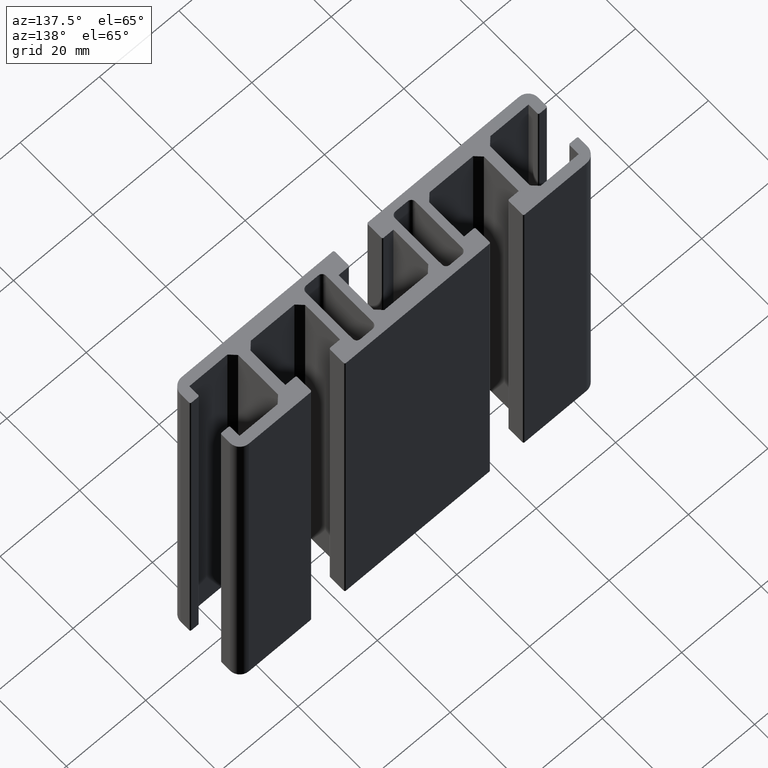
[diagram: clean part render]
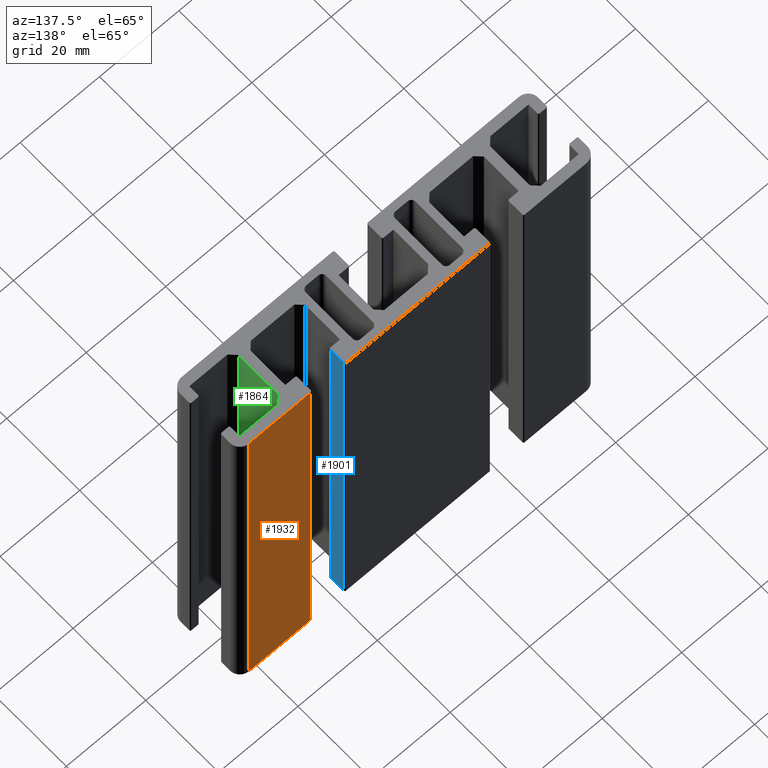
[diagram: same view with three faces highlighted in distinct colors, each labeled with its STEP entity id]
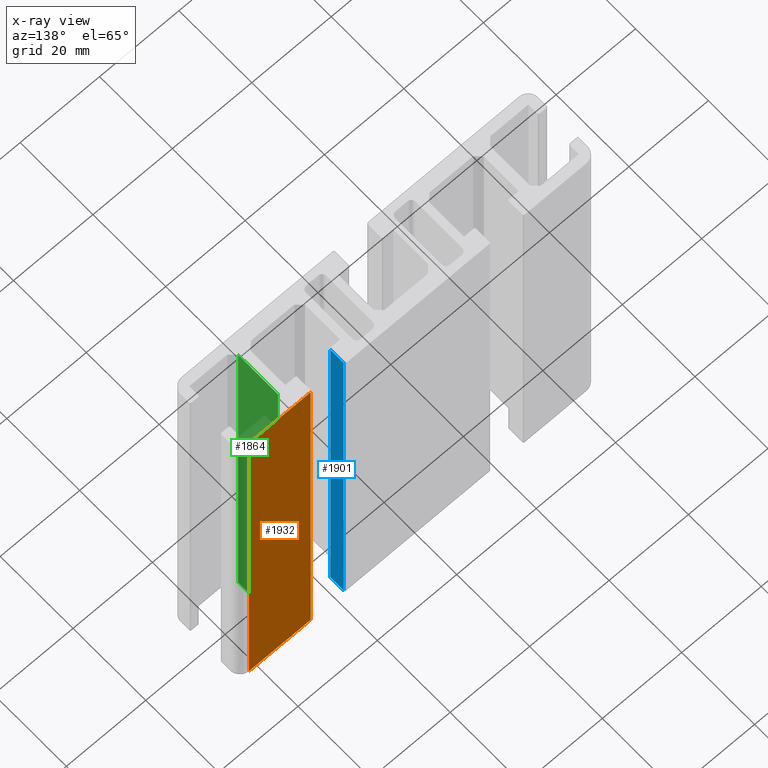
[diagram: x-ray of the same camera — body ghosted, the three highlighted faces saturated]
A machine part, auxiliary view with three faces highlighted in distinct colors.
The next image is the same camera in x-ray (body ghosted, the three faces saturated) — at least one of them is partly hidden behind the body in this view.
Their STEP definitions:

[orange] entity #1932 — the highlighted planar face has unit normal (0, 1, 0).
#78=PLANE('',#2086);
#170=FACE_OUTER_BOUND('',#266,.T.);
#266=EDGE_LOOP('',(#1597,#1598,#1599,#1600));
#411=LINE('',#2984,#629);
#488=LINE('',#3180,#706);
#489=LINE('',#3182,#707);
#490=LINE('',#3183,#708);
#629=VECTOR('',#2417,100.);
#706=VECTOR('',#2602,15.5462800000006);
#707=VECTOR('',#2603,100.);
#708=VECTOR('',#2604,15.5462800000006);
#895=VERTEX_POINT('',#2981);
#896=VERTEX_POINT('',#2983);
#961=VERTEX_POINT('',#3179);
#962=VERTEX_POINT('',#3181);
#1134=EDGE_CURVE('',#895,#896,#411,.T.);
#1232=EDGE_CURVE('',#895,#961,#488,.T.);
#1233=EDGE_CURVE('',#962,#961,#489,.T.);
#1234=EDGE_CURVE('',#896,#962,#490,.T.);
#1597=ORIENTED_EDGE('',*,*,#1134,.F.);
#1598=ORIENTED_EDGE('',*,*,#1232,.T.);
#1599=ORIENTED_EDGE('',*,*,#1233,.F.);
#1600=ORIENTED_EDGE('',*,*,#1234,.F.);
#1932=ADVANCED_FACE('',(#170),#78,.T.);
#2086=AXIS2_PLACEMENT_3D('',#3178,#2600,#2601);
#2417=DIRECTION('',(0.,0.,-1.));
#2600=DIRECTION('center_axis',(0.,1.,0.));
#2601=DIRECTION('ref_axis',(-1.,0.,0.));
#2602=DIRECTION('',(1.,0.,0.));
#2603=DIRECTION('',(0.,0.,1.));
#2604=DIRECTION('',(1.,0.,0.));
#2981=CARTESIAN_POINT('',(26.9537199999994,9.24999999999002,100.));
#2983=CARTESIAN_POINT('',(26.9537199999994,9.24999999999002,0.));
#2984=CARTESIAN_POINT('',(26.9537199999994,9.25,0.));
#3178=CARTESIAN_POINT('Origin',(42.5,9.25,0.));
#3179=CARTESIAN_POINT('',(42.5,9.25,100.));
#3180=CARTESIAN_POINT('',(21.25,9.25,100.));
#3181=CARTESIAN_POINT('',(42.5,9.25,0.));
#3182=CARTESIAN_POINT('',(42.5,9.25,0.));
#3183=CARTESIAN_POINT('',(21.25,9.25,0.));

[blue] entity #1901 — the highlighted planar face has unit normal (-1, -0, 0).
#56=PLANE('',#2037);
#139=FACE_OUTER_BOUND('',#235,.T.);
#235=EDGE_LOOP('',(#1473,#1474,#1475,#1476));
#412=LINE('',#2991,#630);
#414=LINE('',#2997,#632);
#415=LINE('',#2999,#633);
#416=LINE('',#3000,#634);
#630=VECTOR('',#2424,100.);
#632=VECTOR('',#2430,3.7);
#633=VECTOR('',#2431,100.);
#634=VECTOR('',#2432,3.7);
#897=VERTEX_POINT('',#2987);
#899=VERTEX_POINT('',#2990);
#901=VERTEX_POINT('',#2996);
#902=VERTEX_POINT('',#2998);
#1137=EDGE_CURVE('',#899,#897,#412,.T.);
#1140=EDGE_CURVE('',#901,#897,#414,.T.);
#1141=EDGE_CURVE('',#902,#901,#415,.T.);
#1142=EDGE_CURVE('',#899,#902,#416,.T.);
#1473=ORIENTED_EDGE('',*,*,#1140,.F.);
#1474=ORIENTED_EDGE('',*,*,#1141,.F.);
#1475=ORIENTED_EDGE('',*,*,#1142,.F.);
#1476=ORIENTED_EDGE('',*,*,#1137,.T.);
#1901=ADVANCED_FACE('',(#139),#56,.F.);
#2037=AXIS2_PLACEMENT_3D('',#2995,#2428,#2429);
#2424=DIRECTION('',(0.,0.,1.));
#2428=DIRECTION('center_axis',(-1.,-3.27665822402884E-13,0.));
#2429=DIRECTION('ref_axis',(0.,0.,1.));
#2430=DIRECTION('',(-3.27665822402884E-13,1.,0.));
#2431=DIRECTION('',(0.,0.,1.));
#2432=DIRECTION('',(3.27665822402884E-13,-1.,0.));
#2987=CARTESIAN_POINT('',(18.3537199999988,8.95,100.));
#2990=CARTESIAN_POINT('',(18.3537199999988,8.95,0.));
#2991=CARTESIAN_POINT('',(18.3537199999988,8.95,0.));
#2995=CARTESIAN_POINT('Origin',(18.35372,5.25,0.));
#2996=CARTESIAN_POINT('',(18.35372,5.25,100.));
#2997=CARTESIAN_POINT('',(18.3537200000009,2.62500000000301,100.));
#2998=CARTESIAN_POINT('',(18.35372,5.25,0.));
#2999=CARTESIAN_POINT('',(18.35372,5.25,0.));
#3000=CARTESIAN_POINT('',(18.3537200000009,2.62500000000301,0.));

[green] entity #1864 — the highlighted planar face has unit normal (-1, 0, 0).
#30=PLANE('',#1978);
#102=FACE_OUTER_BOUND('',#198,.T.);
#198=EDGE_LOOP('',(#1325,#1326,#1327,#1328));
#321=LINE('',#2763,#539);
#322=LINE('',#2766,#540);
#323=LINE('',#2768,#541);
#324=LINE('',#2769,#542);
#539=VECTOR('',#2217,100.);
#540=VECTOR('',#2220,10.971573);
#541=VECTOR('',#2221,10.971573);
#542=VECTOR('',#2222,100.);
#819=VERTEX_POINT('',#2759);
#820=VERTEX_POINT('',#2761);
#821=VERTEX_POINT('',#2765);
#822=VERTEX_POINT('',#2767);
#1025=EDGE_CURVE('',#820,#819,#321,.T.);
#1026=EDGE_CURVE('',#819,#821,#322,.T.);
#1027=EDGE_CURVE('',#822,#820,#323,.T.);
#1028=EDGE_CURVE('',#822,#821,#324,.T.);
#1325=ORIENTED_EDGE('',*,*,#1026,.F.);
#1326=ORIENTED_EDGE('',*,*,#1025,.F.);
#1327=ORIENTED_EDGE('',*,*,#1027,.F.);
#1328=ORIENTED_EDGE('',*,*,#1028,.T.);
#1864=ADVANCED_FACE('',(#102),#30,.F.);
#1978=AXIS2_PLACEMENT_3D('',#2764,#2218,#2219);
#2217=DIRECTION('',(0.,0.,1.));
#2218=DIRECTION('center_axis',(-1.,0.,0.));
#2219=DIRECTION('ref_axis',(0.,0.,1.));
#2220=DIRECTION('',(0.,1.,0.));
#2221=DIRECTION('',(0.,-1.,0.));
#2222=DIRECTION('',(0.,0.,1.));
#2759=CARTESIAN_POINT('',(31.7,-5.485787,100.));
#2761=CARTESIAN_POINT('',(31.7,-5.485787,0.));
#2763=CARTESIAN_POINT('',(31.7,-5.485787,0.));
#2764=CARTESIAN_POINT('Origin',(31.7,-5.485787,0.));
#2765=CARTESIAN_POINT('',(31.7,5.485786,100.));
#2766=CARTESIAN_POINT('',(31.7,-2.7428935,100.));
#2767=CARTESIAN_POINT('',(31.7,5.485786,0.));
#2768=CARTESIAN_POINT('',(31.7,-2.7428935,0.));
#2769=CARTESIAN_POINT('',(31.7,5.485786,0.));